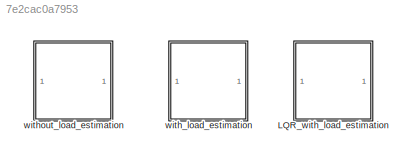
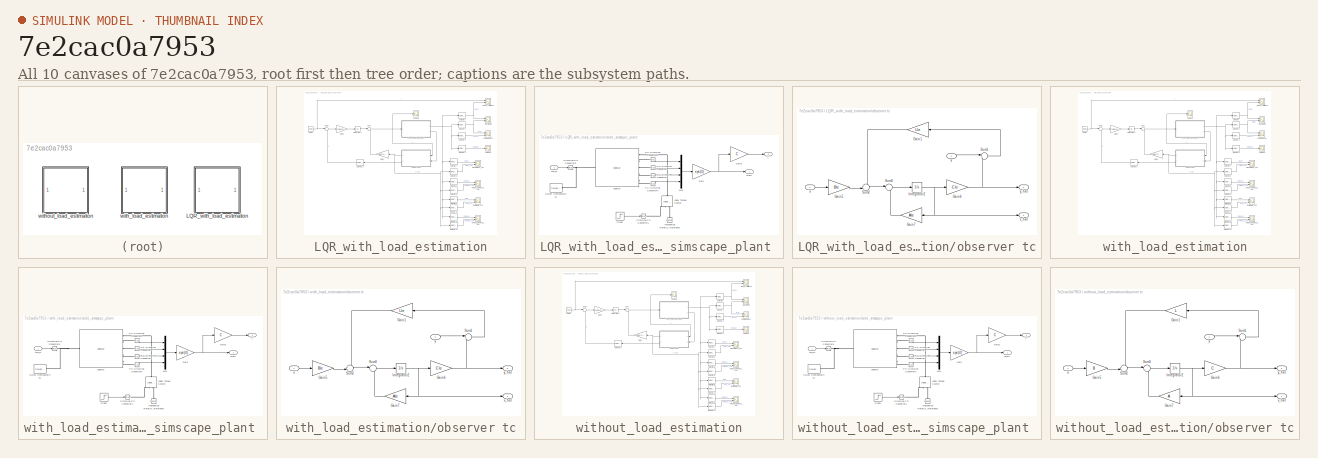
[diagram: thumbnail index - all 10 canvases of the model, root first then tree order]
MODEL slx_7e2cac0a7953
KIND model
CONFIG AbsTol = auto
CONFIG EnableMultiTasking = off
CONFIG FixedStep = auto
CONFIG MaxStep = ts
CONFIG MinStep = auto
CONFIG RelTol = 1e-3
CONFIG SampleTimeConstraint = Unconstrained
CONFIG Solver = daessc
CONFIG SolverName = daessc
CONFIG StartTime = 0.0
CONFIG StopTime = simlength
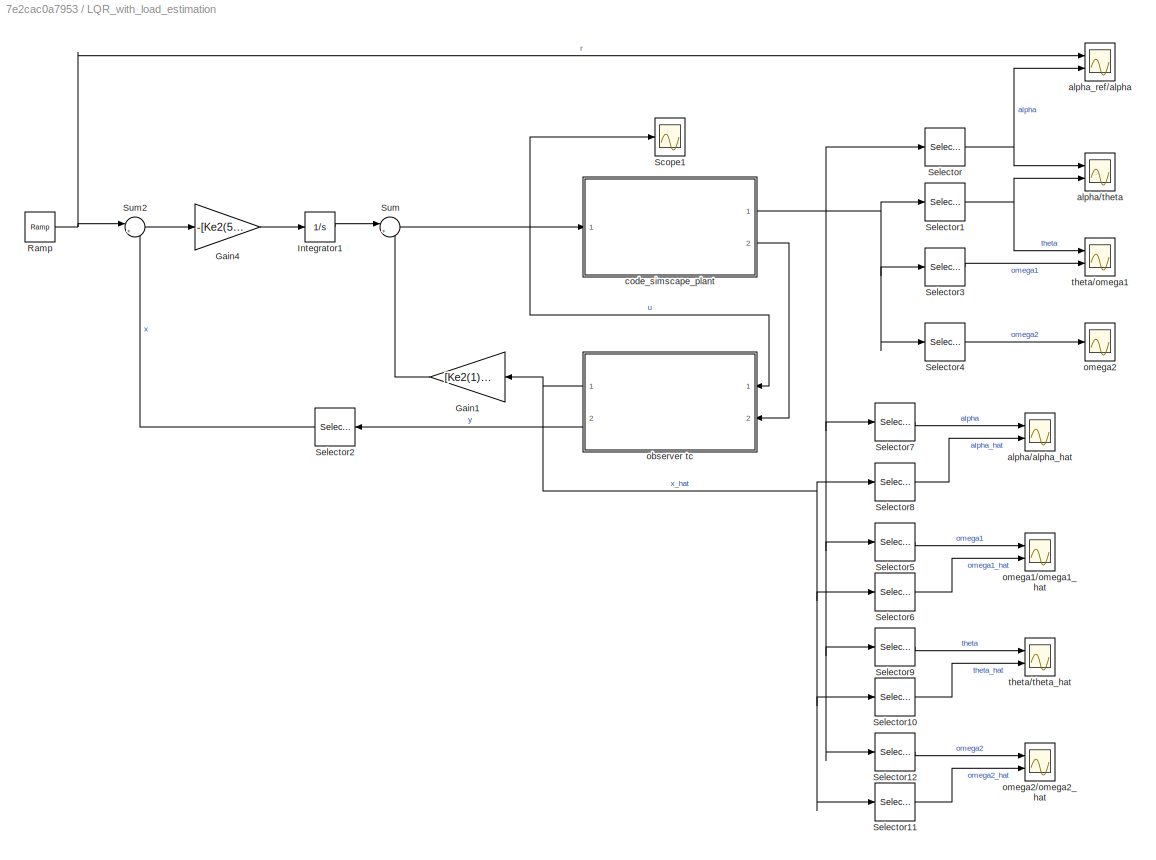
BLOCK [SubSystem] LQR_with_load_estimation
  Ports = []
  RequestExecContextInheritance = off
BLOCK [Gain] LQR_with_load_estimation/Gain1
  Gain = [Ke2(1) Ke2(2) Ke2(3) Ke2(4) 0]
  Multiplication = Matrix(K*u)
  NameLocation = top
BLOCK [Gain] LQR_with_load_estimation/Gain4
  Gain = -[Ke2(5)]
  NameLocation = top
BLOCK [Integrator] LQR_with_load_estimation/Integrator1
  Ports = [1, 1]
BLOCK [Reference] LQR_with_load_estimation/Ramp  REF=simulink/Sources/Ramp
  Ports = [0, 1]
  SourceBlock = simulink/Sources/Ramp
  SourceProductBaseCode = SL
  SourceType = Ramp
BLOCK [Scope] LQR_with_load_estimation/Scope1
  Floating = off
  NumInputPorts = 1
  Ports = [1]
  ScopeSpecificationString = Simulink.scopes.TimeScopeBlockCfg('CurrentConfiguration', extmgr.ConfigurationSet(extmgr.Configuration('Core','General UI',true),extmgr.Configuration('Core','Source UI',true),extmgr.Configuration('Sources','WiredSimulink',true,'DataLoggingVariableName','ScopeData1'),extmgr.Configuration('Visuals','Time Domain',true,'SerializedDisplays',{struct('MinYLimReal','-742.20973','MaxYLimReal','910.39964','...<+1609ch>
BLOCK [Selector] LQR_with_load_estimation/Selector
  IndexOptions = Index vector (dialog)
  Indices = 1
  InputPortWidth = 4
  OutputSizes = 1
  Ports = [1, 1]
BLOCK [Selector] LQR_with_load_estimation/Selector1
  IndexOptions = Index vector (dialog)
  Indices = 3
  InputPortWidth = 4
  OutputSizes = 1
  Ports = [1, 1]
BLOCK [Selector] LQR_with_load_estimation/Selector10
  IndexOptions = Index vector (dialog)
  Indices = 3
  InputPortWidth = 5
  OutputSizes = 1
  Ports = [1, 1]
BLOCK [Selector] LQR_with_load_estimation/Selector11
  IndexOptions = Index vector (dialog)
  Indices = 4
  InputPortWidth = 5
  OutputSizes = 1
  Ports = [1, 1]
BLOCK [Selector] LQR_with_load_estimation/Selector12
  IndexOptions = Index vector (dialog)
  Indices = 4
  InputPortWidth = 4
  OutputSizes = 1
  Ports = [1, 1]
BLOCK [Selector] LQR_with_load_estimation/Selector2
  IndexOptions = Index vector (dialog)
  Indices = 1
  InputPortWidth = 2
  NameLocation = top
  OutputSizes = 1
  Ports = [1, 1]
BLOCK [Selector] LQR_with_load_estimation/Selector3
  IndexOptions = Index vector (dialog)
  Indices = 2
  InputPortWidth = 4
  OutputSizes = 1
  Ports = [1, 1]
BLOCK [Selector] LQR_with_load_estimation/Selector4
  IndexOptions = Index vector (dialog)
  Indices = 4
  InputPortWidth = 4
  OutputSizes = 1
  Ports = [1, 1]
BLOCK [Selector] LQR_with_load_estimation/Selector5
  IndexOptions = Index vector (dialog)
  Indices = 2
  InputPortWidth = 4
  OutputSizes = 1
  Ports = [1, 1]
BLOCK [Selector] LQR_with_load_estimation/Selector6
  IndexOptions = Index vector (dialog)
  Indices = 2
  InputPortWidth = 5
  OutputSizes = 1
  Ports = [1, 1]
BLOCK [Selector] LQR_with_load_estimation/Selector7
  IndexOptions = Index vector (dialog)
  Indices = 1
  InputPortWidth = 4
  OutputSizes = 1
  Ports = [1, 1]
BLOCK [Selector] LQR_with_load_estimation/Selector8
  IndexOptions = Index vector (dialog)
  Indices = 1
  InputPortWidth = 5
  OutputSizes = 1
  Ports = [1, 1]
BLOCK [Selector] LQR_with_load_estimation/Selector9
  IndexOptions = Index vector (dialog)
  Indices = 3
  InputPortWidth = 4
  OutputSizes = 1
  Ports = [1, 1]
BLOCK [Sum] LQR_with_load_estimation/Sum
  Inputs = |+-
  Ports = [2, 1]
BLOCK [Sum] LQR_with_load_estimation/Sum2
  Inputs = |+-
  Ports = [2, 1]
BLOCK [Scope] LQR_with_load_estimation/alpha//alpha_hat
  Floating = off
  NumInputPorts = 2
  Ports = [2]
  ScopeSpecificationString = Simulink.scopes.TimeScopeBlockCfg('CurrentConfiguration', extmgr.ConfigurationSet(extmgr.Configuration('Core','General UI',true),extmgr.Configuration('Core','Source UI',true),extmgr.Configuration('Sources','WiredSimulink',true,'DataLoggingVariableName','ScopeData1'),extmgr.Configuration('Visuals','Time Domain',true,'SerializedDisplays',{struct('MinYLimReal','-49.71948','MaxYLimReal','446.41346','Y...<+1912ch>  <repeated x3 — deduplicated; at blocks: alpha/alpha_hat>
BLOCK [Scope] LQR_with_load_estimation/alpha//theta
  Floating = off
  NumInputPorts = 2
  Ports = [2]
  ScopeSpecificationString = Simulink.scopes.TimeScopeBlockCfg('CurrentConfiguration', extmgr.ConfigurationSet(extmgr.Configuration('Core','General UI',true),extmgr.Configuration('Core','Source UI',true),extmgr.Configuration('Sources','WiredSimulink',true,'DataLoggingVariableName','ScopeData1'),extmgr.Configuration('Visuals','Time Domain',true,'SerializedDisplays',{struct('MinYLimReal','-64.87437','MaxYLimReal','582.20371','Y...<+2168ch>
BLOCK [Scope] LQR_with_load_estimation/alpha_ref//alpha
  Floating = off
  NumInputPorts = 2
  Ports = [2]
  ScopeSpecificationString = Simulink.scopes.TimeScopeBlockCfg('CurrentConfiguration', extmgr.ConfigurationSet(extmgr.Configuration('Core','General UI',true),extmgr.Configuration('Core','Source UI',true),extmgr.Configuration('Sources','WiredSimulink',true,'DataLoggingVariableName','ScopeData1'),extmgr.Configuration('Visuals','Time Domain',true,'SerializedDisplays',{struct('MinYLimReal','-71.61595','MaxYLimReal','642.87796','Y...<+1680ch>
BLOCK [SubSystem] LQR_with_load_estimation/code_simscape_plant 
  Ports = [1, 2]
  RequestExecContextInheritance = off
BLOCK [Gain] LQR_with_load_estimation/code_simscape_plant /Gain
  Gain = eye(4)
  Multiplication = Matrix(K*u)
BLOCK [Gain] LQR_with_load_estimation/code_simscape_plant /Gain1
  Gain = C
  Multiplication = Matrix(K*u)
BLOCK [Reference] LQR_with_load_estimation/code_simscape_plant /Ideal Torque Source  REF=fl_lib/Mechanical/Mechanical Sources/Ideal Torque Source
  NameLocation = right
  Ports = [0, 0, 0, 0, 0, 1, 2]
  SourceBlock = fl_lib/Mechanical/Mechanical Sources/Ideal Torque Source
  SourceProductBaseCode = SS
  SourceType = Ideal Torque Source
BLOCK [Reference] LQR_with_load_estimation/code_simscape_plant /Mechanical Rotational Reference  REF=fl_lib/Mechanical/Rotational Elements/Mechanical
Rotational Reference
  NameLocation = right
  Ports = [0, 0, 0, 0, 0, 1]
  SourceBlock = fl_lib/Mechanical/Rotational Elements/Mechanical\nRotational Reference
  SourceProductBaseCode = SS
  SourceType = Mechanical\nRotational Reference
BLOCK [Mux] LQR_with_load_estimation/code_simscape_plant /Mux
  DisplayOption = bar
  Ports = [4, 1]
BLOCK [Reference] LQR_with_load_estimation/code_simscape_plant /PS-Simulink Converter1  REF=nesl_utility/PS-Simulink
Converter
  NameLocation = top
  Ports = [0, 1, 0, 0, 0, 1]
  SourceBlock = nesl_utility/PS-Simulink\nConverter
  SourceProductBaseCode = SS
  SourceType = PS-Simulink\nConverter
BLOCK [Reference] LQR_with_load_estimation/code_simscape_plant /PS-Simulink Converter2  REF=nesl_utility/PS-Simulink
Converter
  Ports = [0, 1, 0, 0, 0, 1]
  SourceBlock = nesl_utility/PS-Simulink\nConverter
  SourceProductBaseCode = SS
  SourceType = PS-Simulink\nConverter
BLOCK [Reference] LQR_with_load_estimation/code_simscape_plant /PS-Simulink Converter3  REF=nesl_utility/PS-Simulink
Converter
  NameLocation = top
  Ports = [0, 1, 0, 0, 0, 1]
  SourceBlock = nesl_utility/PS-Simulink\nConverter
  SourceProductBaseCode = SS
  SourceType = PS-Simulink\nConverter
BLOCK [Reference] LQR_with_load_estimation/code_simscape_plant /PS-Simulink Converter4  REF=nesl_utility/PS-Simulink
Converter
  NameLocation = top
  Ports = [0, 1, 0, 0, 0, 1]
  SourceBlock = nesl_utility/PS-Simulink\nConverter
  SourceProductBaseCode = SS
  SourceType = PS-Simulink\nConverter
BLOCK [Reference] LQR_with_load_estimation/code_simscape_plant /Simulink-PS Converter1  REF=nesl_utility/Simulink-PS
Converter
  Ports = [1, 0, 0, 0, 0, 0, 1]
  SourceBlock = nesl_utility/Simulink-PS\nConverter
  SourceProductBaseCode = SS
  SourceType = Simulink-PS\nConverter
BLOCK [Reference] LQR_with_load_estimation/code_simscape_plant /Simulink-PS Converter3  REF=nesl_utility/Simulink-PS
Converter
  Ports = [1, 0, 0, 0, 0, 0, 1]
  SourceBlock = nesl_utility/Simulink-PS\nConverter
  SourceProductBaseCode = SS
  SourceType = Simulink-PS\nConverter
BLOCK [Reference] LQR_with_load_estimation/code_simscape_plant /Solver Configuration1  REF=nesl_utility/Solver
Configuration
  Ports = [0, 0, 0, 0, 0, 0, 1]
  SourceBlock = nesl_utility/Solver\nConfiguration
  SourceProductBaseCode = SS
  SourceType = Solver\nConfiguration
BLOCK [Step] LQR_with_load_estimation/code_simscape_plant /Step1
  After = 250
  SampleTime = 0
  Time = simlength/2
BLOCK [Reference] LQR_with_load_estimation/code_simscape_plant /segway  REF=segway_lib/segway
  Ports = [0, 0, 0, 0, 0, 1, 5]
  SourceBlock = segway_lib/segway
  SourceType = segway
BLOCK [Outport] LQR_with_load_estimation/code_simscape_plant /state
BLOCK [Inport] LQR_with_load_estimation/code_simscape_plant /tau_m
BLOCK [Outport] LQR_with_load_estimation/code_simscape_plant /y
  Port = 2
BLOCK [SubSystem] LQR_with_load_estimation/observer tc
  NameLocation = top
  Ports = [2, 2]
  RequestExecContextInheritance = off
BLOCK [Gain] LQR_with_load_estimation/observer tc/Gain1
  Gain = Lle
  Multiplication = Matrix(K*u)
  NameLocation = top
BLOCK [Gain] LQR_with_load_estimation/observer tc/Gain5
  Gain = Ble
  Multiplication = Matrix(K*u)
BLOCK [Gain] LQR_with_load_estimation/observer tc/Gain6
  Gain = Cle
  Multiplication = Matrix(K*u)
BLOCK [Gain] LQR_with_load_estimation/observer tc/Gain7
  Gain = Ale
  Multiplication = Matrix(K*u)
BLOCK [Integrator] LQR_with_load_estimation/observer tc/Integrator2
  InitialCondition = [0 0 0 0 0]
  Ports = [1, 1]
BLOCK [Sum] LQR_with_load_estimation/observer tc/Sum1
  Inputs = |+-
  Ports = [2, 1]
BLOCK [Sum] LQR_with_load_estimation/observer tc/Sum2
  Inputs = ++|
  Ports = [2, 1]
BLOCK [Sum] LQR_with_load_estimation/observer tc/Sum3
  Inputs = |++
  Ports = [2, 1]
BLOCK [Inport] LQR_with_load_estimation/observer tc/u
BLOCK [Outport] LQR_with_load_estimation/observer tc/x_hat
BLOCK [Inport] LQR_with_load_estimation/observer tc/y
  Port = 2
BLOCK [Outport] LQR_with_load_estimation/observer tc/y_hat
  Port = 2
BLOCK [Scope] LQR_with_load_estimation/omega1//omega1_hat
  Floating = off
  NumInputPorts = 2
  Ports = [2]
  ScopeSpecificationString = Simulink.scopes.TimeScopeBlockCfg('CurrentConfiguration', extmgr.ConfigurationSet(extmgr.Configuration('Core','General UI',true),extmgr.Configuration('Core','Source UI',true),extmgr.Configuration('Sources','WiredSimulink',true,'DataLoggingVariableName','ScopeData2'),extmgr.Configuration('Visuals','Time Domain',true,'SerializedDisplays',{struct('MinYLimReal','-8.78624','MaxYLimReal','38.85623','YLa...<+1936ch>
BLOCK [Scope] LQR_with_load_estimation/omega2
  Floating = off
  NumInputPorts = 1
  Ports = [1]
  ScopeSpecificationString = Simulink.scopes.TimeScopeBlockCfg('CurrentConfiguration', extmgr.ConfigurationSet(extmgr.Configuration('Core','General UI',true),extmgr.Configuration('Core','Source UI',true),extmgr.Configuration('Sources','WiredSimulink',true,'DataLoggingVariableName','ScopeData3'),extmgr.Configuration('Visuals','Time Domain',true,'SerializedDisplays',{struct('MinYLimReal','-5.16554','MaxYLimReal','4.77789','YLab...<+1572ch>  <repeated x3 — deduplicated; at blocks: omega2>
BLOCK [Scope] LQR_with_load_estimation/omega2//omega2_hat
  Floating = off
  NumInputPorts = 2
  Ports = [2]
  ScopeSpecificationString = Simulink.scopes.TimeScopeBlockCfg('CurrentConfiguration', extmgr.ConfigurationSet(extmgr.Configuration('Core','General UI',true),extmgr.Configuration('Core','Source UI',true),extmgr.Configuration('Sources','WiredSimulink',true,'DataLoggingVariableName','ScopeData3'),extmgr.Configuration('Visuals','Time Domain',true,'SerializedDisplays',{struct('MinYLimReal','-8.78624','MaxYLimReal','38.85623','YLa...<+1908ch>  <repeated x3 — deduplicated; at blocks: omega2/omega2_hat>
BLOCK [Scope] LQR_with_load_estimation/theta//omega1
  Floating = off
  NumInputPorts = 2
  Ports = [2]
  ScopeSpecificationString = Simulink.scopes.TimeScopeBlockCfg('CurrentConfiguration', extmgr.ConfigurationSet(extmgr.Configuration('Core','General UI',true),extmgr.Configuration('Core','Source UI',true),extmgr.Configuration('Sources','WiredSimulink',true,'DataLoggingVariableName','ScopeData2'),extmgr.Configuration('Visuals','Time Domain',true,'SerializedDisplays',{struct('MinYLimReal','-1.952','MaxYLimReal','1.4063','YLabelR...<+2184ch>
BLOCK [Scope] LQR_with_load_estimation/theta//theta_hat
  Floating = off
  NumInputPorts = 2
  Ports = [2]
  ScopeSpecificationString = Simulink.scopes.TimeScopeBlockCfg('CurrentConfiguration', extmgr.ConfigurationSet(extmgr.Configuration('Core','General UI',true),extmgr.Configuration('Core','Source UI',true),extmgr.Configuration('Sources','WiredSimulink',true,'DataLoggingVariableName','ScopeData2'),extmgr.Configuration('Visuals','Time Domain',true,'SerializedDisplays',{struct('MinYLimReal','-0.7598','MaxYLimReal','0.13968','YLabe...<+1904ch>
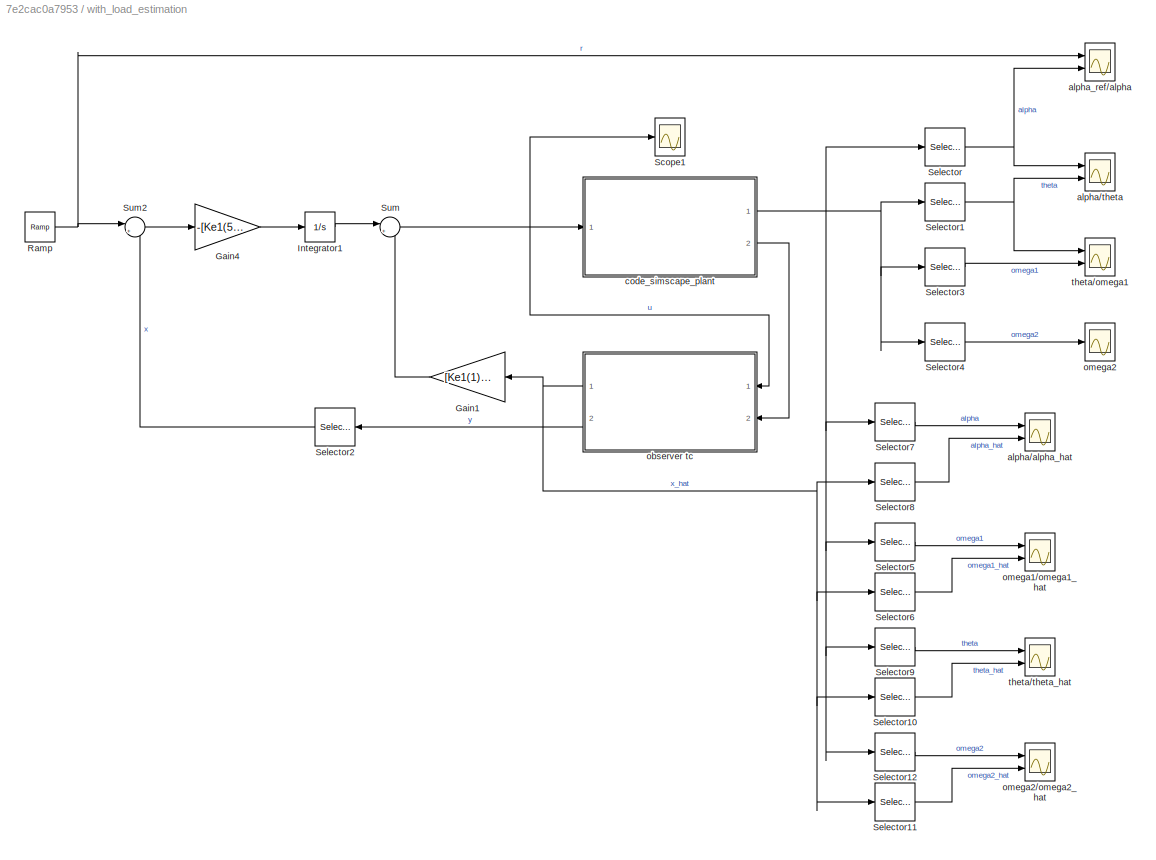
BLOCK [SubSystem] with_load_estimation
  Ports = []
  RequestExecContextInheritance = off
BLOCK [Gain] with_load_estimation/Gain1
  Gain = [Ke1(1) Ke1(2) Ke1(3) Ke1(4) 0]
  Multiplication = Matrix(K*u)
  NameLocation = top
BLOCK [Gain] with_load_estimation/Gain4
  Gain = -[Ke1(5)]
  NameLocation = top
BLOCK [Integrator] with_load_estimation/Integrator1
  Ports = [1, 1]
BLOCK [Reference] with_load_estimation/Ramp  REF=simulink/Sources/Ramp
  Ports = [0, 1]
  SourceBlock = simulink/Sources/Ramp
  SourceProductBaseCode = SL
  SourceType = Ramp
BLOCK [Scope] with_load_estimation/Scope1
  Floating = off
  NumInputPorts = 1
  Ports = [1]
  ScopeSpecificationString = Simulink.scopes.TimeScopeBlockCfg('CurrentConfiguration', extmgr.ConfigurationSet(extmgr.Configuration('Core','General UI',true),extmgr.Configuration('Core','Source UI',true),extmgr.Configuration('Sources','WiredSimulink',true,'DataLoggingVariableName','ScopeData1'),extmgr.Configuration('Visuals','Time Domain',true,'SerializedDisplays',{struct('MinYLimReal','-742.20973','MaxYLimReal','910.39964','...<+1609ch>
BLOCK [Selector] with_load_estimation/Selector
  IndexOptions = Index vector (dialog)
  Indices = 1
  InputPortWidth = 4
  OutputSizes = 1
  Ports = [1, 1]
BLOCK [Selector] with_load_estimation/Selector1
  IndexOptions = Index vector (dialog)
  Indices = 3
  InputPortWidth = 4
  OutputSizes = 1
  Ports = [1, 1]
BLOCK [Selector] with_load_estimation/Selector10
  IndexOptions = Index vector (dialog)
  Indices = 3
  InputPortWidth = 5
  OutputSizes = 1
  Ports = [1, 1]
BLOCK [Selector] with_load_estimation/Selector11
  IndexOptions = Index vector (dialog)
  Indices = 4
  InputPortWidth = 5
  OutputSizes = 1
  Ports = [1, 1]
BLOCK [Selector] with_load_estimation/Selector12
  IndexOptions = Index vector (dialog)
  Indices = 4
  InputPortWidth = 4
  OutputSizes = 1
  Ports = [1, 1]
BLOCK [Selector] with_load_estimation/Selector2
  IndexOptions = Index vector (dialog)
  Indices = 1
  InputPortWidth = 2
  NameLocation = top
  OutputSizes = 1
  Ports = [1, 1]
BLOCK [Selector] with_load_estimation/Selector3
  IndexOptions = Index vector (dialog)
  Indices = 2
  InputPortWidth = 4
  OutputSizes = 1
  Ports = [1, 1]
BLOCK [Selector] with_load_estimation/Selector4
  IndexOptions = Index vector (dialog)
  Indices = 4
  InputPortWidth = 4
  OutputSizes = 1
  Ports = [1, 1]
BLOCK [Selector] with_load_estimation/Selector5
  IndexOptions = Index vector (dialog)
  Indices = 2
  InputPortWidth = 4
  OutputSizes = 1
  Ports = [1, 1]
BLOCK [Selector] with_load_estimation/Selector6
  IndexOptions = Index vector (dialog)
  Indices = 2
  InputPortWidth = 5
  OutputSizes = 1
  Ports = [1, 1]
BLOCK [Selector] with_load_estimation/Selector7
  IndexOptions = Index vector (dialog)
  Indices = 1
  InputPortWidth = 4
  OutputSizes = 1
  Ports = [1, 1]
BLOCK [Selector] with_load_estimation/Selector8
  IndexOptions = Index vector (dialog)
  Indices = 1
  InputPortWidth = 5
  OutputSizes = 1
  Ports = [1, 1]
BLOCK [Selector] with_load_estimation/Selector9
  IndexOptions = Index vector (dialog)
  Indices = 3
  InputPortWidth = 4
  OutputSizes = 1
  Ports = [1, 1]
BLOCK [Sum] with_load_estimation/Sum
  Inputs = |+-
  Ports = [2, 1]
BLOCK [Sum] with_load_estimation/Sum2
  Inputs = |+-
  Ports = [2, 1]
BLOCK [Scope] with_load_estimation/alpha//alpha_hat
  Floating = off
  NumInputPorts = 2
  Ports = [2]
BLOCK [Scope] with_load_estimation/alpha//theta
  Floating = off
  NumInputPorts = 2
  Ports = [2]
  ScopeSpecificationString = Simulink.scopes.TimeScopeBlockCfg('CurrentConfiguration', extmgr.ConfigurationSet(extmgr.Configuration('Core','General UI',true),extmgr.Configuration('Core','Source UI',true),extmgr.Configuration('Sources','WiredSimulink',true,'DataLoggingVariableName','ScopeData1'),extmgr.Configuration('Visuals','Time Domain',true,'SerializedDisplays',{struct('MinYLimReal','-64.87437','MaxYLimReal','582.20371','Y...<+2168ch>
BLOCK [Scope] with_load_estimation/alpha_ref//alpha
  Floating = off
  NumInputPorts = 2
  Ports = [2]
  ScopeSpecificationString = Simulink.scopes.TimeScopeBlockCfg('CurrentConfiguration', extmgr.ConfigurationSet(extmgr.Configuration('Core','General UI',true),extmgr.Configuration('Core','Source UI',true),extmgr.Configuration('Sources','WiredSimulink',true,'DataLoggingVariableName','ScopeData1'),extmgr.Configuration('Visuals','Time Domain',true,'SerializedDisplays',{struct('MinYLimReal','-71.61595','MaxYLimReal','642.87796','Y...<+1680ch>
BLOCK [SubSystem] with_load_estimation/code_simscape_plant 
  Ports = [1, 2]
  RequestExecContextInheritance = off
BLOCK [Gain] with_load_estimation/code_simscape_plant /Gain
  Gain = eye(4)
  Multiplication = Matrix(K*u)
BLOCK [Gain] with_load_estimation/code_simscape_plant /Gain1
  Gain = C
  Multiplication = Matrix(K*u)
BLOCK [Reference] with_load_estimation/code_simscape_plant /Ideal Torque Source  REF=fl_lib/Mechanical/Mechanical Sources/Ideal Torque Source
  NameLocation = right
  Ports = [0, 0, 0, 0, 0, 1, 2]
  SourceBlock = fl_lib/Mechanical/Mechanical Sources/Ideal Torque Source
  SourceProductBaseCode = SS
  SourceType = Ideal Torque Source
BLOCK [Reference] with_load_estimation/code_simscape_plant /Mechanical Rotational Reference  REF=fl_lib/Mechanical/Rotational Elements/Mechanical
Rotational Reference
  NameLocation = right
  Ports = [0, 0, 0, 0, 0, 1]
  SourceBlock = fl_lib/Mechanical/Rotational Elements/Mechanical\nRotational Reference
  SourceProductBaseCode = SS
  SourceType = Mechanical\nRotational Reference
BLOCK [Mux] with_load_estimation/code_simscape_plant /Mux
  DisplayOption = bar
  Ports = [4, 1]
BLOCK [Reference] with_load_estimation/code_simscape_plant /PS-Simulink Converter1  REF=nesl_utility/PS-Simulink
Converter
  NameLocation = top
  Ports = [0, 1, 0, 0, 0, 1]
  SourceBlock = nesl_utility/PS-Simulink\nConverter
  SourceProductBaseCode = SS
  SourceType = PS-Simulink\nConverter
BLOCK [Reference] with_load_estimation/code_simscape_plant /PS-Simulink Converter2  REF=nesl_utility/PS-Simulink
Converter
  Ports = [0, 1, 0, 0, 0, 1]
  SourceBlock = nesl_utility/PS-Simulink\nConverter
  SourceProductBaseCode = SS
  SourceType = PS-Simulink\nConverter
BLOCK [Reference] with_load_estimation/code_simscape_plant /PS-Simulink Converter3  REF=nesl_utility/PS-Simulink
Converter
  NameLocation = top
  Ports = [0, 1, 0, 0, 0, 1]
  SourceBlock = nesl_utility/PS-Simulink\nConverter
  SourceProductBaseCode = SS
  SourceType = PS-Simulink\nConverter
BLOCK [Reference] with_load_estimation/code_simscape_plant /PS-Simulink Converter4  REF=nesl_utility/PS-Simulink
Converter
  NameLocation = top
  Ports = [0, 1, 0, 0, 0, 1]
  SourceBlock = nesl_utility/PS-Simulink\nConverter
  SourceProductBaseCode = SS
  SourceType = PS-Simulink\nConverter
BLOCK [Reference] with_load_estimation/code_simscape_plant /Simulink-PS Converter1  REF=nesl_utility/Simulink-PS
Converter
  Ports = [1, 0, 0, 0, 0, 0, 1]
  SourceBlock = nesl_utility/Simulink-PS\nConverter
  SourceProductBaseCode = SS
  SourceType = Simulink-PS\nConverter
BLOCK [Reference] with_load_estimation/code_simscape_plant /Simulink-PS Converter3  REF=nesl_utility/Simulink-PS
Converter
  Ports = [1, 0, 0, 0, 0, 0, 1]
  SourceBlock = nesl_utility/Simulink-PS\nConverter
  SourceProductBaseCode = SS
  SourceType = Simulink-PS\nConverter
BLOCK [Reference] with_load_estimation/code_simscape_plant /Solver Configuration1  REF=nesl_utility/Solver
Configuration
  Ports = [0, 0, 0, 0, 0, 0, 1]
  SourceBlock = nesl_utility/Solver\nConfiguration
  SourceProductBaseCode = SS
  SourceType = Solver\nConfiguration
BLOCK [Step] with_load_estimation/code_simscape_plant /Step1
  After = 250
  SampleTime = 0
  Time = simlength/2
BLOCK [Reference] with_load_estimation/code_simscape_plant /segway  REF=segway_lib/segway
  Ports = [0, 0, 0, 0, 0, 1, 5]
  SourceBlock = segway_lib/segway
  SourceType = segway
BLOCK [Outport] with_load_estimation/code_simscape_plant /state
BLOCK [Inport] with_load_estimation/code_simscape_plant /tau_m
BLOCK [Outport] with_load_estimation/code_simscape_plant /y
  Port = 2
BLOCK [SubSystem] with_load_estimation/observer tc
  NameLocation = top
  Ports = [2, 2]
  RequestExecContextInheritance = off
BLOCK [Gain] with_load_estimation/observer tc/Gain1
  Gain = Lle
  Multiplication = Matrix(K*u)
  NameLocation = top
BLOCK [Gain] with_load_estimation/observer tc/Gain5
  Gain = Ble
  Multiplication = Matrix(K*u)
BLOCK [Gain] with_load_estimation/observer tc/Gain6
  Gain = Cle
  Multiplication = Matrix(K*u)
BLOCK [Gain] with_load_estimation/observer tc/Gain7
  Gain = Ale
  Multiplication = Matrix(K*u)
BLOCK [Integrator] with_load_estimation/observer tc/Integrator2
  InitialCondition = [0 0 0 0 0]
  Ports = [1, 1]
BLOCK [Sum] with_load_estimation/observer tc/Sum1
  Inputs = |+-
  Ports = [2, 1]
BLOCK [Sum] with_load_estimation/observer tc/Sum2
  Inputs = ++|
  Ports = [2, 1]
BLOCK [Sum] with_load_estimation/observer tc/Sum3
  Inputs = |++
  Ports = [2, 1]
BLOCK [Inport] with_load_estimation/observer tc/u
BLOCK [Outport] with_load_estimation/observer tc/x_hat
BLOCK [Inport] with_load_estimation/observer tc/y
  Port = 2
BLOCK [Outport] with_load_estimation/observer tc/y_hat
  Port = 2
BLOCK [Scope] with_load_estimation/omega1//omega1_hat
  Floating = off
  NumInputPorts = 2
  Ports = [2]
  ScopeSpecificationString = Simulink.scopes.TimeScopeBlockCfg('CurrentConfiguration', extmgr.ConfigurationSet(extmgr.Configuration('Core','General UI',true),extmgr.Configuration('Core','Source UI',true),extmgr.Configuration('Sources','WiredSimulink',true,'DataLoggingVariableName','ScopeData2'),extmgr.Configuration('Visuals','Time Domain',true,'SerializedDisplays',{struct('MinYLimReal','-8.78624','MaxYLimReal','38.85623','YLa...<+1936ch>
BLOCK [Scope] with_load_estimation/omega2
  Floating = off
  NumInputPorts = 1
  Ports = [1]
BLOCK [Scope] with_load_estimation/omega2//omega2_hat
  Floating = off
  NumInputPorts = 2
  Ports = [2]
BLOCK [Scope] with_load_estimation/theta//omega1
  Floating = off
  NumInputPorts = 2
  Ports = [2]
  ScopeSpecificationString = Simulink.scopes.TimeScopeBlockCfg('CurrentConfiguration', extmgr.ConfigurationSet(extmgr.Configuration('Core','General UI',true),extmgr.Configuration('Core','Source UI',true),extmgr.Configuration('Sources','WiredSimulink',true,'DataLoggingVariableName','ScopeData2'),extmgr.Configuration('Visuals','Time Domain',true,'SerializedDisplays',{struct('MinYLimReal','-0.76224','MaxYLimReal','0.16159','YLab...<+2190ch>
BLOCK [Scope] with_load_estimation/theta//theta_hat
  Floating = off
  NumInputPorts = 2
  Ports = [2]
  ScopeSpecificationString = Simulink.scopes.TimeScopeBlockCfg('CurrentConfiguration', extmgr.ConfigurationSet(extmgr.Configuration('Core','General UI',true),extmgr.Configuration('Core','Source UI',true),extmgr.Configuration('Sources','WiredSimulink',true,'DataLoggingVariableName','ScopeData2'),extmgr.Configuration('Visuals','Time Domain',true,'SerializedDisplays',{struct('MinYLimReal','-0.7598','MaxYLimReal','0.13968','YLabe...<+1904ch>
BLOCK [SubSystem] without_load_estimation
  Ports = []
  RequestExecContextInheritance = off
BLOCK [Gain] without_load_estimation/Gain1
  Gain = [Ke1(1) Ke1(2) Ke1(3) Ke1(4)]
  Multiplication = Matrix(K*u)
  NameLocation = top
BLOCK [Gain] without_load_estimation/Gain4
  Gain = -[Ke1(5)]
  NameLocation = top
BLOCK [Integrator] without_load_estimation/Integrator1
  Ports = [1, 1]
BLOCK [Reference] without_load_estimation/Ramp  REF=simulink/Sources/Ramp
  Ports = [0, 1]
  SourceBlock = simulink/Sources/Ramp
  SourceProductBaseCode = SL
  SourceType = Ramp
BLOCK [Scope] without_load_estimation/Scope1
  Floating = off
  NumInputPorts = 1
  Ports = [1]
  ScopeSpecificationString = Simulink.scopes.TimeScopeBlockCfg('CurrentConfiguration', extmgr.ConfigurationSet(extmgr.Configuration('Core','General UI',true),extmgr.Configuration('Core','Source UI',true),extmgr.Configuration('Sources','WiredSimulink',true,'DataLoggingVariableName','ScopeData1'),extmgr.Configuration('Visuals','Time Domain',true,'SerializedDisplays',{struct('MinYLimReal','-742.20973','MaxYLimReal','910.39964','...<+1584ch>
BLOCK [Selector] without_load_estimation/Selector
  IndexOptions = Index vector (dialog)
  Indices = 1
  InputPortWidth = 4
  OutputSizes = 1
  Ports = [1, 1]
BLOCK [Selector] without_load_estimation/Selector1
  IndexOptions = Index vector (dialog)
  Indices = 3
  InputPortWidth = 4
  OutputSizes = 1
  Ports = [1, 1]
BLOCK [Selector] without_load_estimation/Selector10
  IndexOptions = Index vector (dialog)
  Indices = 3
  InputPortWidth = 4
  OutputSizes = 1
  Ports = [1, 1]
BLOCK [Selector] without_load_estimation/Selector11
  IndexOptions = Index vector (dialog)
  Indices = 4
  InputPortWidth = 4
  OutputSizes = 1
  Ports = [1, 1]
BLOCK [Selector] without_load_estimation/Selector12
  IndexOptions = Index vector (dialog)
  Indices = 4
  InputPortWidth = 4
  OutputSizes = 1
  Ports = [1, 1]
BLOCK [Selector] without_load_estimation/Selector2
  IndexOptions = Index vector (dialog)
  Indices = 1
  InputPortWidth = 2
  NameLocation = top
  OutputSizes = 1
  Ports = [1, 1]
BLOCK [Selector] without_load_estimation/Selector3
  IndexOptions = Index vector (dialog)
  Indices = 2
  InputPortWidth = 4
  OutputSizes = 1
  Ports = [1, 1]
BLOCK [Selector] without_load_estimation/Selector4
  IndexOptions = Index vector (dialog)
  Indices = 4
  InputPortWidth = 4
  OutputSizes = 1
  Ports = [1, 1]
BLOCK [Selector] without_load_estimation/Selector5
  IndexOptions = Index vector (dialog)
  Indices = 2
  InputPortWidth = 4
  OutputSizes = 1
  Ports = [1, 1]
BLOCK [Selector] without_load_estimation/Selector6
  IndexOptions = Index vector (dialog)
  Indices = 2
  InputPortWidth = 4
  OutputSizes = 1
  Ports = [1, 1]
BLOCK [Selector] without_load_estimation/Selector7
  IndexOptions = Index vector (dialog)
  Indices = 1
  InputPortWidth = 4
  OutputSizes = 1
  Ports = [1, 1]
BLOCK [Selector] without_load_estimation/Selector8
  IndexOptions = Index vector (dialog)
  Indices = 1
  InputPortWidth = 4
  OutputSizes = 1
  Ports = [1, 1]
BLOCK [Selector] without_load_estimation/Selector9
  IndexOptions = Index vector (dialog)
  Indices = 3
  InputPortWidth = 4
  OutputSizes = 1
  Ports = [1, 1]
BLOCK [Sum] without_load_estimation/Sum
  Inputs = |+-
  Ports = [2, 1]
BLOCK [Sum] without_load_estimation/Sum2
  Inputs = |+-
  Ports = [2, 1]
BLOCK [Scope] without_load_estimation/alpha//alpha_hat
  Floating = off
  NumInputPorts = 2
  Ports = [2]
BLOCK [Scope] without_load_estimation/alpha//theta
  Floating = off
  NumInputPorts = 2
  Ports = [2]
  ScopeSpecificationString = Simulink.scopes.TimeScopeBlockCfg('CurrentConfiguration', extmgr.ConfigurationSet(extmgr.Configuration('Core','General UI',true),extmgr.Configuration('Core','Source UI',true),extmgr.Configuration('Sources','WiredSimulink',true,'DataLoggingVariableName','ScopeData1'),extmgr.Configuration('Visuals','Time Domain',true,'SerializedDisplays',{struct('MinYLimReal','-8.3731','MaxYLimReal','75.35793','YLab...<+2166ch>
BLOCK [Scope] without_load_estimation/alpha_ref//alpha
  Floating = off
  NumInputPorts = 2
  Ports = [2]
  ScopeSpecificationString = Simulink.scopes.TimeScopeBlockCfg('CurrentConfiguration', extmgr.ConfigurationSet(extmgr.Configuration('Core','General UI',true),extmgr.Configuration('Core','Source UI',true),extmgr.Configuration('Sources','WiredSimulink',true,'DataLoggingVariableName','ScopeData1'),extmgr.Configuration('Visuals','Time Domain',true,'SerializedDisplays',{struct('MinYLimReal','-62.566','MaxYLimReal','563.094','YLabe...<+2166ch>
BLOCK [SubSystem] without_load_estimation/code_simscape_plant 
  Ports = [1, 2]
  RequestExecContextInheritance = off
BLOCK [Gain] without_load_estimation/code_simscape_plant /Gain
  Gain = eye(4)
  Multiplication = Matrix(K*u)
BLOCK [Gain] without_load_estimation/code_simscape_plant /Gain1
  Gain = C
  Multiplication = Matrix(K*u)
BLOCK [Reference] without_load_estimation/code_simscape_plant /Ideal Torque Source  REF=fl_lib/Mechanical/Mechanical Sources/Ideal Torque Source
  NameLocation = right
  Ports = [0, 0, 0, 0, 0, 1, 2]
  SourceBlock = fl_lib/Mechanical/Mechanical Sources/Ideal Torque Source
  SourceProductBaseCode = SS
  SourceType = Ideal Torque Source
BLOCK [Reference] without_load_estimation/code_simscape_plant /Mechanical Rotational Reference  REF=fl_lib/Mechanical/Rotational Elements/Mechanical
Rotational Reference
  NameLocation = right
  Ports = [0, 0, 0, 0, 0, 1]
  SourceBlock = fl_lib/Mechanical/Rotational Elements/Mechanical\nRotational Reference
  SourceProductBaseCode = SS
  SourceType = Mechanical\nRotational Reference
BLOCK [Mux] without_load_estimation/code_simscape_plant /Mux
  DisplayOption = bar
  Ports = [4, 1]
BLOCK [Reference] without_load_estimation/code_simscape_plant /PS-Simulink Converter1  REF=nesl_utility/PS-Simulink
Converter
  NameLocation = top
  Ports = [0, 1, 0, 0, 0, 1]
  SourceBlock = nesl_utility/PS-Simulink\nConverter
  SourceProductBaseCode = SS
  SourceType = PS-Simulink\nConverter
BLOCK [Reference] without_load_estimation/code_simscape_plant /PS-Simulink Converter2  REF=nesl_utility/PS-Simulink
Converter
  Ports = [0, 1, 0, 0, 0, 1]
  SourceBlock = nesl_utility/PS-Simulink\nConverter
  SourceProductBaseCode = SS
  SourceType = PS-Simulink\nConverter
BLOCK [Reference] without_load_estimation/code_simscape_plant /PS-Simulink Converter3  REF=nesl_utility/PS-Simulink
Converter
  NameLocation = top
  Ports = [0, 1, 0, 0, 0, 1]
  SourceBlock = nesl_utility/PS-Simulink\nConverter
  SourceProductBaseCode = SS
  SourceType = PS-Simulink\nConverter
BLOCK [Reference] without_load_estimation/code_simscape_plant /PS-Simulink Converter4  REF=nesl_utility/PS-Simulink
Converter
  NameLocation = top
  Ports = [0, 1, 0, 0, 0, 1]
  SourceBlock = nesl_utility/PS-Simulink\nConverter
  SourceProductBaseCode = SS
  SourceType = PS-Simulink\nConverter
BLOCK [Reference] without_load_estimation/code_simscape_plant /Simulink-PS Converter1  REF=nesl_utility/Simulink-PS
Converter
  Ports = [1, 0, 0, 0, 0, 0, 1]
  SourceBlock = nesl_utility/Simulink-PS\nConverter
  SourceProductBaseCode = SS
  SourceType = Simulink-PS\nConverter
BLOCK [Reference] without_load_estimation/code_simscape_plant /Simulink-PS Converter3  REF=nesl_utility/Simulink-PS
Converter
  Ports = [1, 0, 0, 0, 0, 0, 1]
  SourceBlock = nesl_utility/Simulink-PS\nConverter
  SourceProductBaseCode = SS
  SourceType = Simulink-PS\nConverter
BLOCK [Reference] without_load_estimation/code_simscape_plant /Solver Configuration1  REF=nesl_utility/Solver
Configuration
  Ports = [0, 0, 0, 0, 0, 0, 1]
  SourceBlock = nesl_utility/Solver\nConfiguration
  SourceProductBaseCode = SS
  SourceType = Solver\nConfiguration
BLOCK [Step] without_load_estimation/code_simscape_plant /Step1
  After = 250
  SampleTime = 0
  Time = simlength/2
BLOCK [Reference] without_load_estimation/code_simscape_plant /segway  REF=segway_lib/segway
  Ports = [0, 0, 0, 0, 0, 1, 5]
  SourceBlock = segway_lib/segway
  SourceType = segway
BLOCK [Outport] without_load_estimation/code_simscape_plant /state
BLOCK [Inport] without_load_estimation/code_simscape_plant /tau_m
BLOCK [Outport] without_load_estimation/code_simscape_plant /y
  Port = 2
BLOCK [SubSystem] without_load_estimation/observer tc
  NameLocation = top
  Ports = [2, 2]
  RequestExecContextInheritance = off
BLOCK [Gain] without_load_estimation/observer tc/Gain1
  Gain = L
  Multiplication = Matrix(K*u)
  NameLocation = top
BLOCK [Gain] without_load_estimation/observer tc/Gain5
  Gain = B
  Multiplication = Matrix(K*u)
BLOCK [Gain] without_load_estimation/observer tc/Gain6
  Gain = C
  Multiplication = Matrix(K*u)
BLOCK [Gain] without_load_estimation/observer tc/Gain7
  Gain = A
  Multiplication = Matrix(K*u)
BLOCK [Integrator] without_load_estimation/observer tc/Integrator2
  InitialCondition = [0 0 0 0]
  Ports = [1, 1]
BLOCK [Sum] without_load_estimation/observer tc/Sum1
  Inputs = |+-
  Ports = [2, 1]
BLOCK [Sum] without_load_estimation/observer tc/Sum2
  Inputs = ++|
  Ports = [2, 1]
BLOCK [Sum] without_load_estimation/observer tc/Sum3
  Inputs = |++
  Ports = [2, 1]
BLOCK [Inport] without_load_estimation/observer tc/u
BLOCK [Outport] without_load_estimation/observer tc/x_hat
BLOCK [Inport] without_load_estimation/observer tc/y
  Port = 2
BLOCK [Outport] without_load_estimation/observer tc/y_hat
  Port = 2
BLOCK [Scope] without_load_estimation/omega1//omega1_hat
  Floating = off
  NumInputPorts = 2
  Ports = [2]
  ScopeSpecificationString = Simulink.scopes.TimeScopeBlockCfg('CurrentConfiguration', extmgr.ConfigurationSet(extmgr.Configuration('Core','General UI',true),extmgr.Configuration('Core','Source UI',true),extmgr.Configuration('Sources','WiredSimulink',true,'DataLoggingVariableName','ScopeData2'),extmgr.Configuration('Visuals','Time Domain',true,'SerializedDisplays',{struct('MinYLimReal','-8.78624','MaxYLimReal','38.85623','YLa...<+1940ch>
BLOCK [Scope] without_load_estimation/omega2
  Floating = off
  NumInputPorts = 1
  Ports = [1]
BLOCK [Scope] without_load_estimation/omega2//omega2_hat
  Floating = off
  NumInputPorts = 2
  Ports = [2]
BLOCK [Scope] without_load_estimation/theta//omega1
  Floating = off
  NumInputPorts = 2
  Ports = [2]
  ScopeSpecificationString = Simulink.scopes.TimeScopeBlockCfg('CurrentConfiguration', extmgr.ConfigurationSet(extmgr.Configuration('Core','General UI',true),extmgr.Configuration('Core','Source UI',true),extmgr.Configuration('Sources','WiredSimulink',true,'DataLoggingVariableName','ScopeData2'),extmgr.Configuration('Visuals','Time Domain',true,'SerializedDisplays',{struct('MinYLimReal','-0.75953','MaxYLimReal','0.13871','YLab...<+2192ch>
BLOCK [Scope] without_load_estimation/theta//theta_hat
  Floating = off
  NumInputPorts = 2
  Ports = [2]
  ScopeSpecificationString = Simulink.scopes.TimeScopeBlockCfg('CurrentConfiguration', extmgr.ConfigurationSet(extmgr.Configuration('Core','General UI',true),extmgr.Configuration('Core','Source UI',true),extmgr.Configuration('Sources','WiredSimulink',true,'DataLoggingVariableName','ScopeData2'),extmgr.Configuration('Visuals','Time Domain',true,'SerializedDisplays',{struct('MinYLimReal','-0.7598','MaxYLimReal','0.13968','YLabe...<+1898ch>
LINE LQR_with_load_estimation/Gain1:1 -> LQR_with_load_estimation/Sum:2
LINE LQR_with_load_estimation/Gain4:1 -> LQR_with_load_estimation/Integrator1:1
LINE LQR_with_load_estimation/Integrator1:1 -> LQR_with_load_estimation/Sum:1
NET LQR_with_load_estimation/Ramp:1 -> LQR_with_load_estimation/Sum2:1, LQR_with_load_estimation/alpha_ref//alpha:1
LINE LQR_with_load_estimation/Selector10:1 -> LQR_with_load_estimation/theta//theta_hat:2
LINE LQR_with_load_estimation/Selector11:1 -> LQR_with_load_estimation/omega2//omega2_hat:2
LINE LQR_with_load_estimation/Selector12:1 -> LQR_with_load_estimation/omega2//omega2_hat:1
NET LQR_with_load_estimation/Selector1:1 -> LQR_with_load_estimation/alpha//theta:2, LQR_with_load_estimation/theta//omega1:1
LINE LQR_with_load_estimation/Selector2:1 -> LQR_with_load_estimation/Sum2:2
LINE LQR_with_load_estimation/Selector3:1 -> LQR_with_load_estimation/theta//omega1:2
LINE LQR_with_load_estimation/Selector4:1 -> LQR_with_load_estimation/omega2:1
LINE LQR_with_load_estimation/Selector5:1 -> LQR_with_load_estimation/omega1//omega1_hat:1
LINE LQR_with_load_estimation/Selector6:1 -> LQR_with_load_estimation/omega1//omega1_hat:2
LINE LQR_with_load_estimation/Selector7:1 -> LQR_with_load_estimation/alpha//alpha_hat:1
LINE LQR_with_load_estimation/Selector8:1 -> LQR_with_load_estimation/alpha//alpha_hat:2
LINE LQR_with_load_estimation/Selector9:1 -> LQR_with_load_estimation/theta//theta_hat:1
NET LQR_with_load_estimation/Selector:1 -> LQR_with_load_estimation/alpha//theta:1, LQR_with_load_estimation/alpha_ref//alpha:2
LINE LQR_with_load_estimation/Sum2:1 -> LQR_with_load_estimation/Gain4:1
NET LQR_with_load_estimation/Sum:1 -> LQR_with_load_estimation/Scope1:1, LQR_with_load_estimation/code_simscape_plant :1, LQR_with_load_estimation/observer tc:1
LINE LQR_with_load_estimation/code_simscape_plant /Gain1:1 -> LQR_with_load_estimation/code_simscape_plant /y:1
NET LQR_with_load_estimation/code_simscape_plant /Gain:1 -> LQR_with_load_estimation/code_simscape_plant /Gain1:1, LQR_with_load_estimation/code_simscape_plant /state:1
LINE LQR_with_load_estimation/code_simscape_plant /Mux:1 -> LQR_with_load_estimation/code_simscape_plant /Gain:1
LINE LQR_with_load_estimation/code_simscape_plant /PS-Simulink Converter1:1 -> LQR_with_load_estimation/code_simscape_plant /Mux:3
LINE LQR_with_load_estimation/code_simscape_plant /PS-Simulink Converter2:1 -> LQR_with_load_estimation/code_simscape_plant /Mux:1
LINE LQR_with_load_estimation/code_simscape_plant /PS-Simulink Converter3:1 -> LQR_with_load_estimation/code_simscape_plant /Mux:2
LINE LQR_with_load_estimation/code_simscape_plant /PS-Simulink Converter4:1 -> LQR_with_load_estimation/code_simscape_plant /Mux:4
LINE LQR_with_load_estimation/code_simscape_plant /Step1:1 -> LQR_with_load_estimation/code_simscape_plant /Simulink-PS Converter1:1
LINE LQR_with_load_estimation/code_simscape_plant /tau_m:1 -> LQR_with_load_estimation/code_simscape_plant /Simulink-PS Converter3:1
NET LQR_with_load_estimation/code_simscape_plant :1 -> LQR_with_load_estimation/Selector12:1, LQR_with_load_estimation/Selector1:1, LQR_with_load_estimation/Selector3:1, LQR_with_load_estimation/Selector4:1, LQR_with_load_estimation/Selector5:1, LQR_with_load_estimation/Selector7:1, LQR_with_load_estimation/Selector9:1, LQR_with_load_estimation/Selector:1
LINE LQR_with_load_estimation/code_simscape_plant :2 -> LQR_with_load_estimation/observer tc:2
LINE LQR_with_load_estimation/observer tc/Gain1:1 -> LQR_with_load_estimation/observer tc/Sum2:1
LINE LQR_with_load_estimation/observer tc/Gain5:1 -> LQR_with_load_estimation/observer tc/Sum2:2
NET LQR_with_load_estimation/observer tc/Gain6:1 -> LQR_with_load_estimation/observer tc/Sum1:2, LQR_with_load_estimation/observer tc/y_hat:1
LINE LQR_with_load_estimation/observer tc/Gain7:1 -> LQR_with_load_estimation/observer tc/Sum3:2
NET LQR_with_load_estimation/observer tc/Integrator2:1 -> LQR_with_load_estimation/observer tc/Gain6:1, LQR_with_load_estimation/observer tc/Gain7:1, LQR_with_load_estimation/observer tc/x_hat:1
LINE LQR_with_load_estimation/observer tc/Sum1:1 -> LQR_with_load_estimation/observer tc/Gain1:1
LINE LQR_with_load_estimation/observer tc/Sum2:1 -> LQR_with_load_estimation/observer tc/Sum3:1
LINE LQR_with_load_estimation/observer tc/Sum3:1 -> LQR_with_load_estimation/observer tc/Integrator2:1
LINE LQR_with_load_estimation/observer tc/u:1 -> LQR_with_load_estimation/observer tc/Gain5:1
LINE LQR_with_load_estimation/observer tc/y:1 -> LQR_with_load_estimation/observer tc/Sum1:1
NET LQR_with_load_estimation/observer tc:1 -> LQR_with_load_estimation/Gain1:1, LQR_with_load_estimation/Selector10:1, LQR_with_load_estimation/Selector11:1, LQR_with_load_estimation/Selector6:1, LQR_with_load_estimation/Selector8:1
LINE LQR_with_load_estimation/observer tc:2 -> LQR_with_load_estimation/Selector2:1
LINE with_load_estimation/Gain1:1 -> with_load_estimation/Sum:2
LINE with_load_estimation/Gain4:1 -> with_load_estimation/Integrator1:1
LINE with_load_estimation/Integrator1:1 -> with_load_estimation/Sum:1
NET with_load_estimation/Ramp:1 -> with_load_estimation/Sum2:1, with_load_estimation/alpha_ref//alpha:1
LINE with_load_estimation/Selector10:1 -> with_load_estimation/theta//theta_hat:2
LINE with_load_estimation/Selector11:1 -> with_load_estimation/omega2//omega2_hat:2
LINE with_load_estimation/Selector12:1 -> with_load_estimation/omega2//omega2_hat:1
NET with_load_estimation/Selector1:1 -> with_load_estimation/alpha//theta:2, with_load_estimation/theta//omega1:1
LINE with_load_estimation/Selector2:1 -> with_load_estimation/Sum2:2
LINE with_load_estimation/Selector3:1 -> with_load_estimation/theta//omega1:2
LINE with_load_estimation/Selector4:1 -> with_load_estimation/omega2:1
LINE with_load_estimation/Selector5:1 -> with_load_estimation/omega1//omega1_hat:1
LINE with_load_estimation/Selector6:1 -> with_load_estimation/omega1//omega1_hat:2
LINE with_load_estimation/Selector7:1 -> with_load_estimation/alpha//alpha_hat:1
LINE with_load_estimation/Selector8:1 -> with_load_estimation/alpha//alpha_hat:2
LINE with_load_estimation/Selector9:1 -> with_load_estimation/theta//theta_hat:1
NET with_load_estimation/Selector:1 -> with_load_estimation/alpha//theta:1, with_load_estimation/alpha_ref//alpha:2
LINE with_load_estimation/Sum2:1 -> with_load_estimation/Gain4:1
NET with_load_estimation/Sum:1 -> with_load_estimation/Scope1:1, with_load_estimation/code_simscape_plant :1, with_load_estimation/observer tc:1
LINE with_load_estimation/code_simscape_plant /Gain1:1 -> with_load_estimation/code_simscape_plant /y:1
NET with_load_estimation/code_simscape_plant /Gain:1 -> with_load_estimation/code_simscape_plant /Gain1:1, with_load_estimation/code_simscape_plant /state:1
LINE with_load_estimation/code_simscape_plant /Mux:1 -> with_load_estimation/code_simscape_plant /Gain:1
LINE with_load_estimation/code_simscape_plant /PS-Simulink Converter1:1 -> with_load_estimation/code_simscape_plant /Mux:3
LINE with_load_estimation/code_simscape_plant /PS-Simulink Converter2:1 -> with_load_estimation/code_simscape_plant /Mux:1
LINE with_load_estimation/code_simscape_plant /PS-Simulink Converter3:1 -> with_load_estimation/code_simscape_plant /Mux:2
LINE with_load_estimation/code_simscape_plant /PS-Simulink Converter4:1 -> with_load_estimation/code_simscape_plant /Mux:4
LINE with_load_estimation/code_simscape_plant /Step1:1 -> with_load_estimation/code_simscape_plant /Simulink-PS Converter1:1
LINE with_load_estimation/code_simscape_plant /tau_m:1 -> with_load_estimation/code_simscape_plant /Simulink-PS Converter3:1
NET with_load_estimation/code_simscape_plant :1 -> with_load_estimation/Selector12:1, with_load_estimation/Selector1:1, with_load_estimation/Selector3:1, with_load_estimation/Selector4:1, with_load_estimation/Selector5:1, with_load_estimation/Selector7:1, with_load_estimation/Selector9:1, with_load_estimation/Selector:1
LINE with_load_estimation/code_simscape_plant :2 -> with_load_estimation/observer tc:2
LINE with_load_estimation/observer tc/Gain1:1 -> with_load_estimation/observer tc/Sum2:1
LINE with_load_estimation/observer tc/Gain5:1 -> with_load_estimation/observer tc/Sum2:2
NET with_load_estimation/observer tc/Gain6:1 -> with_load_estimation/observer tc/Sum1:2, with_load_estimation/observer tc/y_hat:1
LINE with_load_estimation/observer tc/Gain7:1 -> with_load_estimation/observer tc/Sum3:2
NET with_load_estimation/observer tc/Integrator2:1 -> with_load_estimation/observer tc/Gain6:1, with_load_estimation/observer tc/Gain7:1, with_load_estimation/observer tc/x_hat:1
LINE with_load_estimation/observer tc/Sum1:1 -> with_load_estimation/observer tc/Gain1:1
LINE with_load_estimation/observer tc/Sum2:1 -> with_load_estimation/observer tc/Sum3:1
LINE with_load_estimation/observer tc/Sum3:1 -> with_load_estimation/observer tc/Integrator2:1
LINE with_load_estimation/observer tc/u:1 -> with_load_estimation/observer tc/Gain5:1
LINE with_load_estimation/observer tc/y:1 -> with_load_estimation/observer tc/Sum1:1
NET with_load_estimation/observer tc:1 -> with_load_estimation/Gain1:1, with_load_estimation/Selector10:1, with_load_estimation/Selector11:1, with_load_estimation/Selector6:1, with_load_estimation/Selector8:1
LINE with_load_estimation/observer tc:2 -> with_load_estimation/Selector2:1
LINE without_load_estimation/Gain1:1 -> without_load_estimation/Sum:2
LINE without_load_estimation/Gain4:1 -> without_load_estimation/Integrator1:1
LINE without_load_estimation/Integrator1:1 -> without_load_estimation/Sum:1
NET without_load_estimation/Ramp:1 -> without_load_estimation/Sum2:1, without_load_estimation/alpha_ref//alpha:1
LINE without_load_estimation/Selector10:1 -> without_load_estimation/theta//theta_hat:2
LINE without_load_estimation/Selector11:1 -> without_load_estimation/omega2//omega2_hat:2
LINE without_load_estimation/Selector12:1 -> without_load_estimation/omega2//omega2_hat:1
NET without_load_estimation/Selector1:1 -> without_load_estimation/alpha//theta:2, without_load_estimation/theta//omega1:1
LINE without_load_estimation/Selector2:1 -> without_load_estimation/Sum2:2
LINE without_load_estimation/Selector3:1 -> without_load_estimation/theta//omega1:2
LINE without_load_estimation/Selector4:1 -> without_load_estimation/omega2:1
LINE without_load_estimation/Selector5:1 -> without_load_estimation/omega1//omega1_hat:1
LINE without_load_estimation/Selector6:1 -> without_load_estimation/omega1//omega1_hat:2
LINE without_load_estimation/Selector7:1 -> without_load_estimation/alpha//alpha_hat:1
LINE without_load_estimation/Selector8:1 -> without_load_estimation/alpha//alpha_hat:2
LINE without_load_estimation/Selector9:1 -> without_load_estimation/theta//theta_hat:1
NET without_load_estimation/Selector:1 -> without_load_estimation/alpha//theta:1, without_load_estimation/alpha_ref//alpha:2
LINE without_load_estimation/Sum2:1 -> without_load_estimation/Gain4:1
NET without_load_estimation/Sum:1 -> without_load_estimation/Scope1:1, without_load_estimation/code_simscape_plant :1, without_load_estimation/observer tc:1
LINE without_load_estimation/code_simscape_plant /Gain1:1 -> without_load_estimation/code_simscape_plant /y:1
NET without_load_estimation/code_simscape_plant /Gain:1 -> without_load_estimation/code_simscape_plant /Gain1:1, without_load_estimation/code_simscape_plant /state:1
LINE without_load_estimation/code_simscape_plant /Mux:1 -> without_load_estimation/code_simscape_plant /Gain:1
LINE without_load_estimation/code_simscape_plant /PS-Simulink Converter1:1 -> without_load_estimation/code_simscape_plant /Mux:3
LINE without_load_estimation/code_simscape_plant /PS-Simulink Converter2:1 -> without_load_estimation/code_simscape_plant /Mux:1
LINE without_load_estimation/code_simscape_plant /PS-Simulink Converter3:1 -> without_load_estimation/code_simscape_plant /Mux:2
LINE without_load_estimation/code_simscape_plant /PS-Simulink Converter4:1 -> without_load_estimation/code_simscape_plant /Mux:4
LINE without_load_estimation/code_simscape_plant /Step1:1 -> without_load_estimation/code_simscape_plant /Simulink-PS Converter1:1
LINE without_load_estimation/code_simscape_plant /tau_m:1 -> without_load_estimation/code_simscape_plant /Simulink-PS Converter3:1
NET without_load_estimation/code_simscape_plant :1 -> without_load_estimation/Selector12:1, without_load_estimation/Selector1:1, without_load_estimation/Selector3:1, without_load_estimation/Selector4:1, without_load_estimation/Selector5:1, without_load_estimation/Selector7:1, without_load_estimation/Selector9:1, without_load_estimation/Selector:1
LINE without_load_estimation/code_simscape_plant :2 -> without_load_estimation/observer tc:2
LINE without_load_estimation/observer tc/Gain1:1 -> without_load_estimation/observer tc/Sum2:1
LINE without_load_estimation/observer tc/Gain5:1 -> without_load_estimation/observer tc/Sum2:2
NET without_load_estimation/observer tc/Gain6:1 -> without_load_estimation/observer tc/Sum1:2, without_load_estimation/observer tc/y_hat:1
LINE without_load_estimation/observer tc/Gain7:1 -> without_load_estimation/observer tc/Sum3:2
NET without_load_estimation/observer tc/Integrator2:1 -> without_load_estimation/observer tc/Gain6:1, without_load_estimation/observer tc/Gain7:1, without_load_estimation/observer tc/x_hat:1
LINE without_load_estimation/observer tc/Sum1:1 -> without_load_estimation/observer tc/Gain1:1
LINE without_load_estimation/observer tc/Sum2:1 -> without_load_estimation/observer tc/Sum3:1
LINE without_load_estimation/observer tc/Sum3:1 -> without_load_estimation/observer tc/Integrator2:1
LINE without_load_estimation/observer tc/u:1 -> without_load_estimation/observer tc/Gain5:1
LINE without_load_estimation/observer tc/y:1 -> without_load_estimation/observer tc/Sum1:1
NET without_load_estimation/observer tc:1 -> without_load_estimation/Gain1:1, without_load_estimation/Selector10:1, without_load_estimation/Selector11:1, without_load_estimation/Selector6:1, without_load_estimation/Selector8:1
LINE without_load_estimation/observer tc:2 -> without_load_estimation/Selector2:1
PLINE LQR_with_load_estimation/code_simscape_plant /Ideal Torque Source:LConn1 -- LQR_with_load_estimation/code_simscape_plant /segway:RConn1
PLINE LQR_with_load_estimation/code_simscape_plant /Ideal Torque Source:RConn1 -- LQR_with_load_estimation/code_simscape_plant /Simulink-PS Converter1:RConn1
PLINE LQR_with_load_estimation/code_simscape_plant /Ideal Torque Source:RConn2 -- LQR_with_load_estimation/code_simscape_plant /Mechanical Rotational Reference:LConn1
PLINE LQR_with_load_estimation/code_simscape_plant /PS-Simulink Converter1:LConn1 -- LQR_with_load_estimation/code_simscape_plant /segway:RConn4
PLINE LQR_with_load_estimation/code_simscape_plant /PS-Simulink Converter2:LConn1 -- LQR_with_load_estimation/code_simscape_plant /segway:RConn2
PLINE LQR_with_load_estimation/code_simscape_plant /PS-Simulink Converter3:LConn1 -- LQR_with_load_estimation/code_simscape_plant /segway:RConn3
PLINE LQR_with_load_estimation/code_simscape_plant /PS-Simulink Converter4:LConn1 -- LQR_with_load_estimation/code_simscape_plant /segway:RConn5
PNET net1: LQR_with_load_estimation/code_simscape_plant /Simulink-PS Converter3:RConn1 -- LQR_with_load_estimation/code_simscape_plant /Solver Configuration1:RConn1 -- LQR_with_load_estimation/code_simscape_plant /segway:LConn1
PLINE with_load_estimation/code_simscape_plant /Ideal Torque Source:LConn1 -- with_load_estimation/code_simscape_plant /segway:RConn1
PLINE with_load_estimation/code_simscape_plant /Ideal Torque Source:RConn1 -- with_load_estimation/code_simscape_plant /Simulink-PS Converter1:RConn1
PLINE with_load_estimation/code_simscape_plant /Ideal Torque Source:RConn2 -- with_load_estimation/code_simscape_plant /Mechanical Rotational Reference:LConn1
PLINE with_load_estimation/code_simscape_plant /PS-Simulink Converter1:LConn1 -- with_load_estimation/code_simscape_plant /segway:RConn4
PLINE with_load_estimation/code_simscape_plant /PS-Simulink Converter2:LConn1 -- with_load_estimation/code_simscape_plant /segway:RConn2
PLINE with_load_estimation/code_simscape_plant /PS-Simulink Converter3:LConn1 -- with_load_estimation/code_simscape_plant /segway:RConn3
PLINE with_load_estimation/code_simscape_plant /PS-Simulink Converter4:LConn1 -- with_load_estimation/code_simscape_plant /segway:RConn5
PNET net2: with_load_estimation/code_simscape_plant /Simulink-PS Converter3:RConn1 -- with_load_estimation/code_simscape_plant /Solver Configuration1:RConn1 -- with_load_estimation/code_simscape_plant /segway:LConn1
PLINE without_load_estimation/code_simscape_plant /Ideal Torque Source:LConn1 -- without_load_estimation/code_simscape_plant /segway:RConn1
PLINE without_load_estimation/code_simscape_plant /Ideal Torque Source:RConn1 -- without_load_estimation/code_simscape_plant /Simulink-PS Converter1:RConn1
PLINE without_load_estimation/code_simscape_plant /Ideal Torque Source:RConn2 -- without_load_estimation/code_simscape_plant /Mechanical Rotational Reference:LConn1
PLINE without_load_estimation/code_simscape_plant /PS-Simulink Converter1:LConn1 -- without_load_estimation/code_simscape_plant /segway:RConn4
PLINE without_load_estimation/code_simscape_plant /PS-Simulink Converter2:LConn1 -- without_load_estimation/code_simscape_plant /segway:RConn2
PLINE without_load_estimation/code_simscape_plant /PS-Simulink Converter3:LConn1 -- without_load_estimation/code_simscape_plant /segway:RConn3
PLINE without_load_estimation/code_simscape_plant /PS-Simulink Converter4:LConn1 -- without_load_estimation/code_simscape_plant /segway:RConn5
PNET net3: without_load_estimation/code_simscape_plant /Simulink-PS Converter3:RConn1 -- without_load_estimation/code_simscape_plant /Solver Configuration1:RConn1 -- without_load_estimation/code_simscape_plant /segway:LConn1
note: NET lines group one-source signal fan-out (src -> all destinations, sorted); 1:1 wires keep LINE; PNET lines group multi-terminal physical nets as a canonical sorted terminal list (undirected conserving connections); 2-terminal nets keep the pairwise PLINE form
